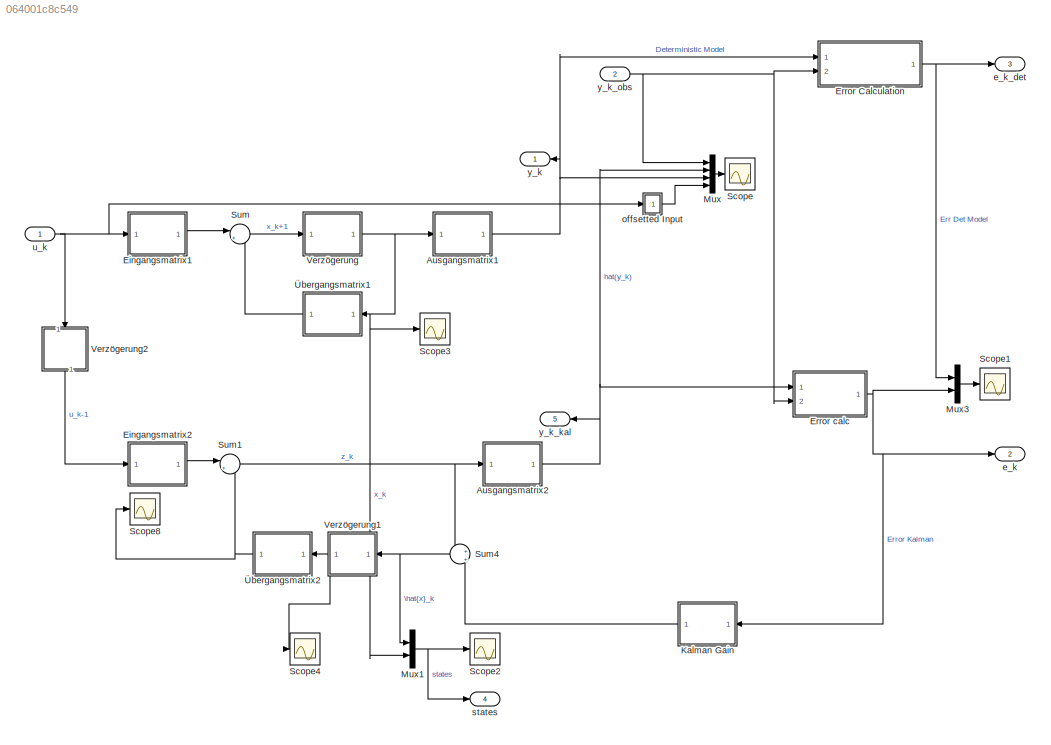
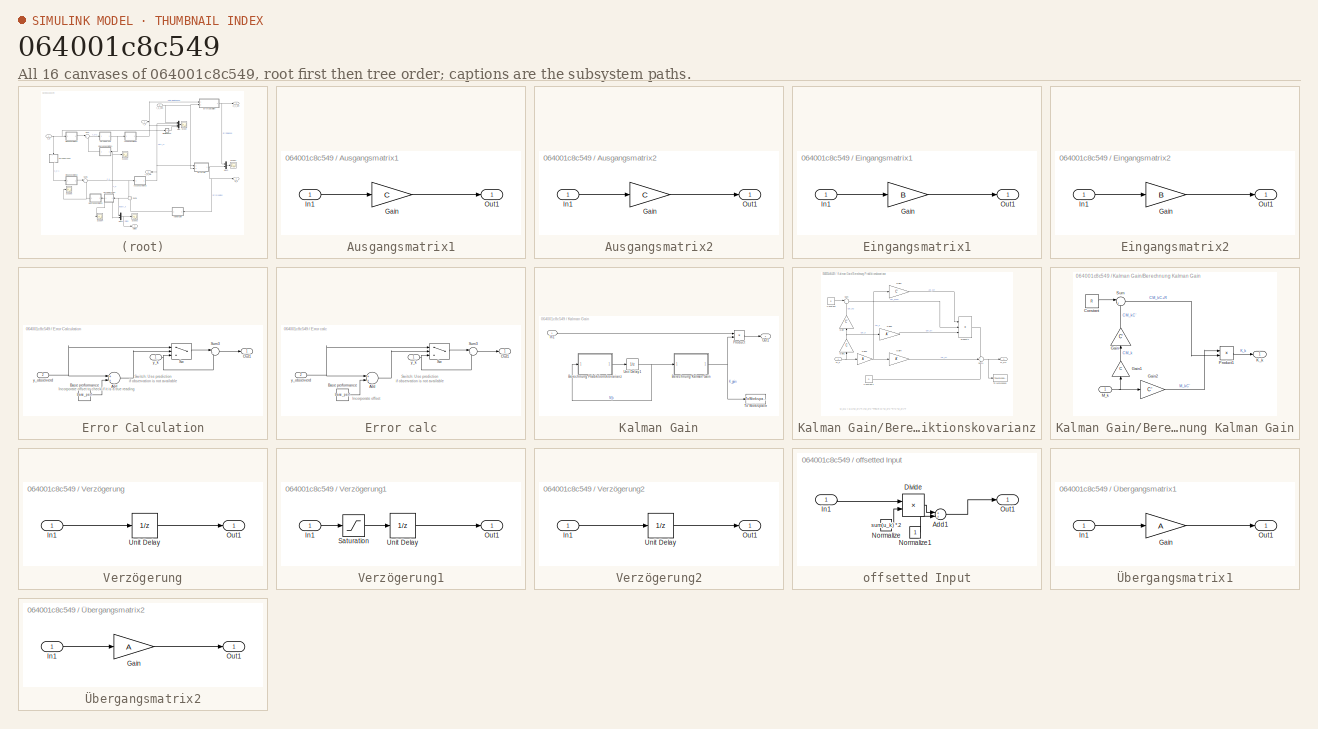
[diagram: thumbnail index - all 16 canvases of the model, root first then tree order]
MODEL slx_064001c8c549
KIND model
CONFIG AbsTol = auto
CONFIG FixedStep = T
CONFIG MaxStep = auto
CONFIG MinStep = auto
CONFIG RelTol = 1e-3
CONFIG SampleTimeConstraint = Unconstrained
CONFIG Solver = FixedStepDiscrete
CONFIG SolverMode = SingleTasking
CONFIG SolverName = FixedStepDiscrete
CONFIG StartTime = 1
CONFIG StopTime = T_end
WORKSPACE source: external: MATLAB File  (data not in archive)
BLOCK [SubSystem] Ausgangsmatrix1
  Ports = [1, 1]
  RequestExecContextInheritance = off
BLOCK [Gain] Ausgangsmatrix1/Gain
  Gain = C
  Multiplication = Matrix(K*u)
  OutDataTypeStr = Inherit: Inherit via internal rule
  ParamDataTypeStr = Inherit: Inherit via internal rule
  SaturateOnIntegerOverflow = off
BLOCK [Inport] Ausgangsmatrix1/In1
  IconDisplay = Port number
BLOCK [Outport] Ausgangsmatrix1/Out1
  IconDisplay = Port number
BLOCK [SubSystem] Ausgangsmatrix2
  Ports = [1, 1]
  RequestExecContextInheritance = off
BLOCK [Gain] Ausgangsmatrix2/Gain
  Gain = C
  Multiplication = Matrix(K*u)
  OutDataTypeStr = Inherit: Inherit via internal rule
  ParamDataTypeStr = Inherit: Inherit via internal rule
  SaturateOnIntegerOverflow = off
BLOCK [Inport] Ausgangsmatrix2/In1
  IconDisplay = Port number
BLOCK [Outport] Ausgangsmatrix2/Out1
  IconDisplay = Port number
BLOCK [SubSystem] Eingangsmatrix1
  Ports = [1, 1]
  RequestExecContextInheritance = off
BLOCK [Gain] Eingangsmatrix1/Gain
  Gain = B
  OutDataTypeStr = Inherit: Inherit via internal rule
  ParamDataTypeStr = Inherit: Inherit via internal rule
  SaturateOnIntegerOverflow = off
BLOCK [Inport] Eingangsmatrix1/In1
  IconDisplay = Port number
BLOCK [Outport] Eingangsmatrix1/Out1
  IconDisplay = Port number
BLOCK [SubSystem] Eingangsmatrix2
  Ports = [1, 1]
  RequestExecContextInheritance = off
BLOCK [Gain] Eingangsmatrix2/Gain
  Gain = B
  OutDataTypeStr = Inherit: Inherit via internal rule
  ParamDataTypeStr = Inherit: Inherit via internal rule
  SaturateOnIntegerOverflow = off
BLOCK [Inport] Eingangsmatrix2/In1
  IconDisplay = Port number
BLOCK [Outport] Eingangsmatrix2/Out1
  IconDisplay = Port number
BLOCK [SubSystem] Error Calculation
  Ports = [2, 1]
  RequestExecContextInheritance = off
BLOCK [Sum] Error Calculation/Add
  InputSameDT = off
  OutDataTypeStr = Inherit: Inherit via internal rule
  Ports = [2, 1]
  SaturateOnIntegerOverflow = off
BLOCK [Constant] Error Calculation/Base performance
  Value = base_perf
BLOCK [Outport] Error Calculation/Out1
  IconDisplay = Port number
BLOCK [Sum] Error Calculation/Sum3
  IconShape = round
  InputSameDT = off
  Inputs = |+-
  OutDataTypeStr = Inherit: Inherit via internal rule
  Ports = [2, 1]
  SaturateOnIntegerOverflow = off
BLOCK [Switch] Error Calculation/Sw
  Criteria = u2 > Threshold
  InputSameDT = off
  SaturateOnIntegerOverflow = off
BLOCK [Inport] Error Calculation/y_k
  IconDisplay = Port number
BLOCK [Inport] Error Calculation/y_observerd
  IconDisplay = Port number
  Port = 2
BLOCK [SubSystem] Error calc
  Ports = [2, 1]
  RequestExecContextInheritance = off
BLOCK [Sum] Error calc/Add
  InputSameDT = off
  OutDataTypeStr = Inherit: Inherit via internal rule
  Ports = [2, 1]
  SaturateOnIntegerOverflow = off
BLOCK [Constant] Error calc/Base performance
  Value = base_perf
BLOCK [Outport] Error calc/Out1
  IconDisplay = Port number
BLOCK [Sum] Error calc/Sum3
  IconShape = round
  InputSameDT = off
  Inputs = |+-
  OutDataTypeStr = Inherit: Inherit via internal rule
  Ports = [2, 1]
  SaturateOnIntegerOverflow = off
BLOCK [Switch] Error calc/Sw
  Criteria = u2 > Threshold
  InputSameDT = off
  SaturateOnIntegerOverflow = off
BLOCK [Inport] Error calc/y_k
  IconDisplay = Port number
BLOCK [Inport] Error calc/y_observerd
  IconDisplay = Port number
  Port = 2
BLOCK [SubSystem] Kalman Gain
  Ports = [1, 1]
  RequestExecContextInheritance = off
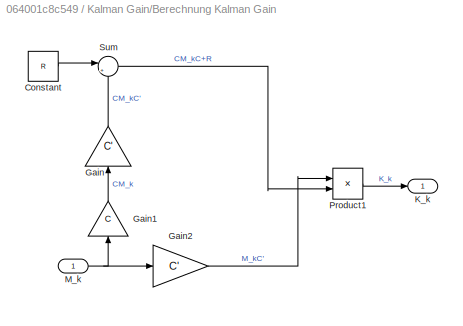
BLOCK [SubSystem] Kalman Gain/Berechnung Kalman Gain
  Ports = [1, 1]
  RequestExecContextInheritance = off
BLOCK [Constant] Kalman Gain/Berechnung Kalman Gain/Constant
  Value = R
BLOCK [Gain] Kalman Gain/Berechnung Kalman Gain/Gain
  Gain = C'
  Multiplication = Matrix(u*K)
  OutDataTypeStr = Inherit: Inherit via internal rule
  ParamDataTypeStr = Inherit: Inherit via internal rule
  SaturateOnIntegerOverflow = off
BLOCK [Gain] Kalman Gain/Berechnung Kalman Gain/Gain1
  Gain = C
  Multiplication = Matrix(K*u)
  OutDataTypeStr = Inherit: Inherit via internal rule
  ParamDataTypeStr = Inherit: Inherit via internal rule
  SaturateOnIntegerOverflow = off
BLOCK [Gain] Kalman Gain/Berechnung Kalman Gain/Gain2
  Gain = C'
  Multiplication = Matrix(u*K)
  OutDataTypeStr = Inherit: Inherit via internal rule
  ParamDataTypeStr = Inherit: Inherit via internal rule
  SaturateOnIntegerOverflow = off
BLOCK [Outport] Kalman Gain/Berechnung Kalman Gain/K_k
  IconDisplay = Port number
BLOCK [Inport] Kalman Gain/Berechnung Kalman Gain/M_k
  IconDisplay = Port number
BLOCK [Product] Kalman Gain/Berechnung Kalman Gain/Product1
  InputSameDT = off
  Inputs = */
  Multiplication = Matrix(*)
  OutDataTypeStr = Inherit: Inherit via internal rule
  Ports = [2, 1]
  SaturateOnIntegerOverflow = off
BLOCK [Sum] Kalman Gain/Berechnung Kalman Gain/Sum
  IconShape = round
  InputSameDT = off
  Inputs = |++
  OutDataTypeStr = Inherit: Inherit via internal rule
  Ports = [2, 1]
  SaturateOnIntegerOverflow = off
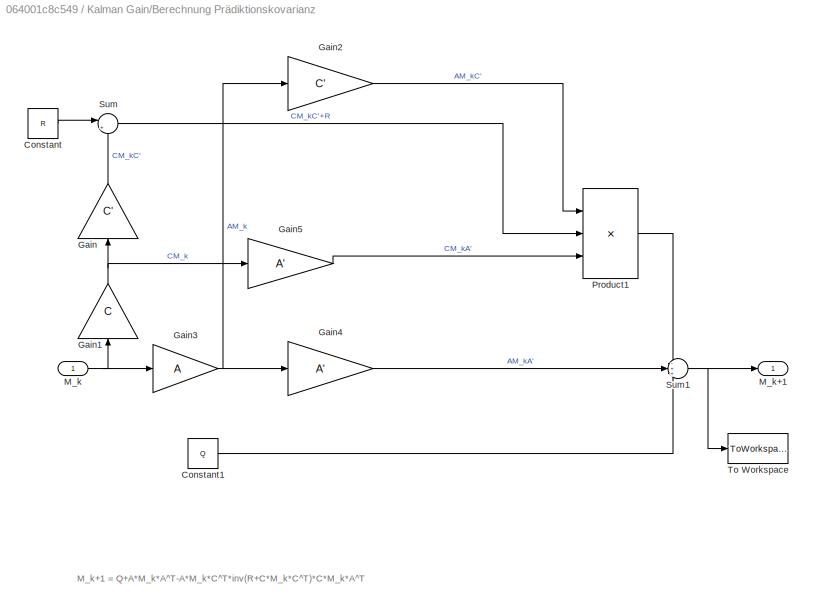
BLOCK [SubSystem] Kalman Gain/Berechnung Prädiktionskovarianz
  Ports = [1, 1]
  RequestExecContextInheritance = off
BLOCK [Constant] Kalman Gain/Berechnung Prädiktionskovarianz/Constant
  Value = R
BLOCK [Constant] Kalman Gain/Berechnung Prädiktionskovarianz/Constant1
  Value = Q
  VectorParams1D = off
BLOCK [Gain] Kalman Gain/Berechnung Prädiktionskovarianz/Gain
  Gain = C'
  Multiplication = Matrix(u*K)
  OutDataTypeStr = Inherit: Inherit via internal rule
  ParamDataTypeStr = Inherit: Inherit via internal rule
  SaturateOnIntegerOverflow = off
BLOCK [Gain] Kalman Gain/Berechnung Prädiktionskovarianz/Gain1
  Gain = C
  Multiplication = Matrix(K*u)
  OutDataTypeStr = Inherit: Inherit via internal rule
  ParamDataTypeStr = Inherit: Inherit via internal rule
  SaturateOnIntegerOverflow = off
BLOCK [Gain] Kalman Gain/Berechnung Prädiktionskovarianz/Gain2
  Gain = C'
  Multiplication = Matrix(u*K)
  OutDataTypeStr = Inherit: Inherit via internal rule
  ParamDataTypeStr = Inherit: Inherit via internal rule
  SaturateOnIntegerOverflow = off
BLOCK [Gain] Kalman Gain/Berechnung Prädiktionskovarianz/Gain3
  Gain = A
  Multiplication = Matrix(K*u)
  OutDataTypeStr = Inherit: Inherit via internal rule
  ParamDataTypeStr = Inherit: Inherit via internal rule
  SaturateOnIntegerOverflow = off
BLOCK [Gain] Kalman Gain/Berechnung Prädiktionskovarianz/Gain4
  Gain = A'
  Multiplication = Matrix(u*K)
  OutDataTypeStr = Inherit: Inherit via internal rule
  ParamDataTypeStr = Inherit: Inherit via internal rule
  SaturateOnIntegerOverflow = off
BLOCK [Gain] Kalman Gain/Berechnung Prädiktionskovarianz/Gain5
  Gain = A'
  Multiplication = Matrix(u*K)
  OutDataTypeStr = Inherit: Inherit via internal rule
  ParamDataTypeStr = Inherit: Inherit via internal rule
  SaturateOnIntegerOverflow = off
BLOCK [Inport] Kalman Gain/Berechnung Prädiktionskovarianz/M_k
  IconDisplay = Port number
BLOCK [Outport] Kalman Gain/Berechnung Prädiktionskovarianz/M_k+1
  IconDisplay = Port number
BLOCK [Product] Kalman Gain/Berechnung Prädiktionskovarianz/Product1
  InputSameDT = off
  Inputs = */*
  Multiplication = Matrix(*)
  OutDataTypeStr = Inherit: Inherit via internal rule
  Ports = [3, 1]
  SaturateOnIntegerOverflow = off
BLOCK [Sum] Kalman Gain/Berechnung Prädiktionskovarianz/Sum
  IconShape = round
  InputSameDT = off
  Inputs = |++
  OutDataTypeStr = Inherit: Inherit via internal rule
  Ports = [2, 1]
  SaturateOnIntegerOverflow = off
BLOCK [Sum] Kalman Gain/Berechnung Prädiktionskovarianz/Sum1
  IconShape = round
  InputSameDT = off
  Inputs = -++
  OutDataTypeStr = Inherit: Inherit via internal rule
  Ports = [3, 1]
  SaturateOnIntegerOverflow = off
BLOCK [ToWorkspace] Kalman Gain/Berechnung Prädiktionskovarianz/To Workspace
  MaxDataPoints = inf
  Ports = [1]
  SampleTime = -1
  SaveFormat = Structure
  VariableName = Mk1
BLOCK [Inport] Kalman Gain/In1
  IconDisplay = Port number
BLOCK [Outport] Kalman Gain/Out1
  IconDisplay = Port number
BLOCK [Product] Kalman Gain/Product
  InputSameDT = off
  OutDataTypeStr = Inherit: Inherit via internal rule
  Ports = [2, 1]
  SaturateOnIntegerOverflow = off
BLOCK [ToWorkspace] Kalman Gain/To Workspace
  MaxDataPoints = inf
  Ports = [1]
  SampleTime = -1
  SaveFormat = Structure
  VariableName = K_gain
BLOCK [UnitDelay] Kalman Gain/Unit Delay1
  InitialCondition = M_0
  SampleTime = -1
BLOCK [Mux] Mux
  DisplayOption = signals
  Ports = [4, 1]
BLOCK [Mux] Mux1
  DisplayOption = bar
  Inputs = 2
  Ports = [2, 1]
BLOCK [Mux] Mux3
  DisplayOption = signals
  Inputs = 2
  Ports = [2, 1]
BLOCK [Scope] Scope
  DataFormat = StructureWithTime
  Floating = off
  LegendLocations = 0.86772     0.84587     0.11013    0.099312
  NumInputPorts = 1
  Ports = [1]
  SampleTime = 0
  ShowLegends = on
  YMax = 1.25
  YMin = -1.25
BLOCK [Scope] Scope1
  DataFormat = StructureWithTime
  Floating = off
  LegendLocations = 0.87996     0.89208    0.096395    0.053097
  NumInputPorts = 1
  Ports = [1]
  SampleTime = 0
  SaveName = ScopeData1
  ShowLegends = on
BLOCK [Scope] Scope2
  DataFormat = StructureWithTime
  Floating = off
  LegendLocations = 0.75832      0.7996      0.1395     0.10065
  NumInputPorts = 1
  Ports = [1]
  SampleTime = 0
  SaveName = ScopeData2
  ShowLegends = on
BLOCK [Scope] Scope3
  DataFormat = StructureWithTime
  Floating = off
  NumInputPorts = 1
  Ports = [1]
  SampleTime = 0
  SaveName = ScopeData3
  ShowLegends = off
BLOCK [Scope] Scope4
  DataFormat = StructureWithTime
  Floating = off
  LegendLocations = 0.75832      0.7996      0.1953    0.053812
  NumInputPorts = 1
  Ports = [1]
  SampleTime = 0
  SaveName = ScopeData4
  ShowLegends = on
BLOCK [Scope] Scope8
  DataFormat = StructureWithTime
  Floating = off
  NumInputPorts = 1
  Ports = [1]
  SampleTime = 0
  SaveName = ScopeData8
  ShowLegends = on
BLOCK [Sum] Sum
  IconShape = round
  InputSameDT = off
  Inputs = |++
  OutDataTypeStr = Inherit: Inherit via internal rule
  Ports = [2, 1]
  SaturateOnIntegerOverflow = off
BLOCK [Sum] Sum1
  IconShape = round
  InputSameDT = off
  Inputs = |++
  OutDataTypeStr = Inherit: Inherit via internal rule
  Ports = [2, 1]
  SaturateOnIntegerOverflow = off
BLOCK [Sum] Sum4
  IconShape = round
  InputSameDT = off
  Inputs = +|+
  OutDataTypeStr = Inherit: Inherit via internal rule
  Ports = [2, 1]
  SaturateOnIntegerOverflow = off
BLOCK [SubSystem] Verzögerung
  Ports = [1, 1]
  RequestExecContextInheritance = off
BLOCK [Inport] Verzögerung/In1
  IconDisplay = Port number
BLOCK [Outport] Verzögerung/Out1
  IconDisplay = Port number
BLOCK [UnitDelay] Verzögerung/Unit Delay
  InitialCondition = x_0
  SampleTime = -1
BLOCK [SubSystem] Verzögerung1
  Ports = [1, 1]
  RequestExecContextInheritance = off
BLOCK [Inport] Verzögerung1/In1
  IconDisplay = Port number
BLOCK [Outport] Verzögerung1/Out1
  IconDisplay = Port number
BLOCK [Saturate] Verzögerung1/Saturation
  InputPortMap = u0
  LinearizeAsGain = off
  LowerLimit = 0
  OutMax = 20000
  OutMin = 0
  Ports = [1, 1]
  UpperLimit = 20000
BLOCK [UnitDelay] Verzögerung1/Unit Delay
  InitialCondition = x0hat
  SampleTime = -1
BLOCK [SubSystem] Verzögerung2
  Ports = [1, 1]
  RequestExecContextInheritance = off
BLOCK [Inport] Verzögerung2/In1
  IconDisplay = Port number
BLOCK [Outport] Verzögerung2/Out1
  IconDisplay = Port number
BLOCK [UnitDelay] Verzögerung2/Unit Delay
  SampleTime = -1
BLOCK [Outport] e_k
  IconDisplay = Port number
  Port = 2
BLOCK [Outport] e_k_det
  IconDisplay = Port number
  Port = 3
BLOCK [SubSystem] offsetted Input
  Ports = [1, 1]
  RequestExecContextInheritance = off
BLOCK [Sum] offsetted Input/Add1
  InputSameDT = off
  OutDataTypeStr = Inherit: Inherit via internal rule
  Ports = [2, 1]
  SaturateOnIntegerOverflow = off
BLOCK [Product] offsetted Input/Divide
  InputSameDT = off
  Inputs = */
  OutDataTypeStr = Inherit: Inherit via internal rule
  Ports = [2, 1]
  RndMeth = Floor
  SaturateOnIntegerOverflow = off
BLOCK [Inport] offsetted Input/In1
  IconDisplay = Port number
BLOCK [Constant] offsetted Input/Normalize
  Value = sum(u_k) *.2
BLOCK [Constant] offsetted Input/Normalize1
BLOCK [Outport] offsetted Input/Out1
  IconDisplay = Port number
BLOCK [Outport] states
  IconDisplay = Port number
  Port = 4
BLOCK [Inport] u_k
  IconDisplay = Port number
BLOCK [Outport] y_k
  IconDisplay = Port number
BLOCK [Outport] y_k_kal
  IconDisplay = Port number
  Port = 5
BLOCK [Inport] y_k_obs
  IconDisplay = Port number
  Port = 2
BLOCK [SubSystem] Übergangsmatrix1
  Ports = [1, 1]
  RequestExecContextInheritance = off
BLOCK [Gain] Übergangsmatrix1/Gain
  Gain = A
  Multiplication = Matrix(K*u)
  OutDataTypeStr = Inherit: Inherit via internal rule
  ParamDataTypeStr = Inherit: Inherit via internal rule
  SaturateOnIntegerOverflow = off
BLOCK [Inport] Übergangsmatrix1/In1
  IconDisplay = Port number
BLOCK [Outport] Übergangsmatrix1/Out1
  IconDisplay = Port number
BLOCK [SubSystem] Übergangsmatrix2
  Ports = [1, 1]
  RequestExecContextInheritance = off
BLOCK [Gain] Übergangsmatrix2/Gain
  Gain = A
  Multiplication = Matrix(K*u)
  OutDataTypeStr = Inherit: Inherit via internal rule
  ParamDataTypeStr = Inherit: Inherit via internal rule
  SaturateOnIntegerOverflow = off
BLOCK [Inport] Übergangsmatrix2/In1
  IconDisplay = Port number
BLOCK [Outport] Übergangsmatrix2/Out1
  IconDisplay = Port number
ANNOTATION (root): Systemmodell
ANNOTATION (root): Simulated Syst
ANNOTATION Error Calculation: Incorporate offset to check if it is a true reading
ANNOTATION Error Calculation: Switch: Use prediction if observation is not available
ANNOTATION Error calc: Incorporate offset
ANNOTATION Error calc: Switch: Use prediction if observation is not available
ANNOTATION Kalman Gain/Berechnung Prädiktionskovarianz: M_k+1 = Q+A*M_k*A^T-A*M_k*C^T*inv(R+C*M_k*C^T)*C*M_k*A^T
LINE Ausgangsmatrix1/Gain:1 -> Ausgangsmatrix1/Out1:1
LINE Ausgangsmatrix1/In1:1 -> Ausgangsmatrix1/Gain:1
NET Ausgangsmatrix1:1 -> Error Calculation:1, Mux:3, y_k:1
LINE Ausgangsmatrix2/Gain:1 -> Ausgangsmatrix2/Out1:1
LINE Ausgangsmatrix2/In1:1 -> Ausgangsmatrix2/Gain:1
NET Ausgangsmatrix2:1 -> Error calc:1, Mux:2, y_k_kal:1
LINE Eingangsmatrix1/Gain:1 -> Eingangsmatrix1/Out1:1
LINE Eingangsmatrix1/In1:1 -> Eingangsmatrix1/Gain:1
LINE Eingangsmatrix1:1 -> Sum:1
LINE Eingangsmatrix2/Gain:1 -> Eingangsmatrix2/Out1:1
LINE Eingangsmatrix2/In1:1 -> Eingangsmatrix2/Gain:1
LINE Eingangsmatrix2:1 -> Sum1:1
LINE Error Calculation/Add:1 -> Error Calculation/Sw:2
LINE Error Calculation/Base performance:1 -> Error Calculation/Add:2
LINE Error Calculation/Sum3:1 -> Error Calculation/Out1:1
LINE Error Calculation/Sw:1 -> Error Calculation/Sum3:1
NET Error Calculation/y_k:1 -> Error Calculation/Sum3:2, Error Calculation/Sw:3
NET Error Calculation/y_observerd:1 -> Error Calculation/Add:1, Error Calculation/Sw:1
NET Error Calculation:1 -> Mux3:1, e_k_det:1
LINE Error calc/Add:1 -> Error calc/Sw:2
LINE Error calc/Base performance:1 -> Error calc/Add:2
LINE Error calc/Sum3:1 -> Error calc/Out1:1
LINE Error calc/Sw:1 -> Error calc/Sum3:1
NET Error calc/y_k:1 -> Error calc/Sum3:2, Error calc/Sw:3
NET Error calc/y_observerd:1 -> Error calc/Add:1, Error calc/Sw:1
NET Error calc:1 -> Kalman Gain:1, Mux3:2, e_k:1
LINE Kalman Gain/Berechnung Kalman Gain/Constant:1 -> Kalman Gain/Berechnung Kalman Gain/Sum:1
LINE Kalman Gain/Berechnung Kalman Gain/Gain1:1 -> Kalman Gain/Berechnung Kalman Gain/Gain:1
LINE Kalman Gain/Berechnung Kalman Gain/Gain2:1 -> Kalman Gain/Berechnung Kalman Gain/Product1:1
LINE Kalman Gain/Berechnung Kalman Gain/Gain:1 -> Kalman Gain/Berechnung Kalman Gain/Sum:2
NET Kalman Gain/Berechnung Kalman Gain/M_k:1 -> Kalman Gain/Berechnung Kalman Gain/Gain1:1, Kalman Gain/Berechnung Kalman Gain/Gain2:1
LINE Kalman Gain/Berechnung Kalman Gain/Product1:1 -> Kalman Gain/Berechnung Kalman Gain/K_k:1
LINE Kalman Gain/Berechnung Kalman Gain/Sum:1 -> Kalman Gain/Berechnung Kalman Gain/Product1:2
NET Kalman Gain/Berechnung Kalman Gain:1 -> Kalman Gain/Product:2, Kalman Gain/To Workspace:1
LINE Kalman Gain/Berechnung Prädiktionskovarianz/Constant1:1 -> Kalman Gain/Berechnung Prädiktionskovarianz/Sum1:3
LINE Kalman Gain/Berechnung Prädiktionskovarianz/Constant:1 -> Kalman Gain/Berechnung Prädiktionskovarianz/Sum:1
NET Kalman Gain/Berechnung Prädiktionskovarianz/Gain1:1 -> Kalman Gain/Berechnung Prädiktionskovarianz/Gain5:1, Kalman Gain/Berechnung Prädiktionskovarianz/Gain:1
LINE Kalman Gain/Berechnung Prädiktionskovarianz/Gain2:1 -> Kalman Gain/Berechnung Prädiktionskovarianz/Product1:1
NET Kalman Gain/Berechnung Prädiktionskovarianz/Gain3:1 -> Kalman Gain/Berechnung Prädiktionskovarianz/Gain2:1, Kalman Gain/Berechnung Prädiktionskovarianz/Gain4:1
LINE Kalman Gain/Berechnung Prädiktionskovarianz/Gain4:1 -> Kalman Gain/Berechnung Prädiktionskovarianz/Sum1:2
LINE Kalman Gain/Berechnung Prädiktionskovarianz/Gain5:1 -> Kalman Gain/Berechnung Prädiktionskovarianz/Product1:3
LINE Kalman Gain/Berechnung Prädiktionskovarianz/Gain:1 -> Kalman Gain/Berechnung Prädiktionskovarianz/Sum:2
NET Kalman Gain/Berechnung Prädiktionskovarianz/M_k:1 -> Kalman Gain/Berechnung Prädiktionskovarianz/Gain1:1, Kalman Gain/Berechnung Prädiktionskovarianz/Gain3:1
LINE Kalman Gain/Berechnung Prädiktionskovarianz/Product1:1 -> Kalman Gain/Berechnung Prädiktionskovarianz/Sum1:1
NET Kalman Gain/Berechnung Prädiktionskovarianz/Sum1:1 -> Kalman Gain/Berechnung Prädiktionskovarianz/M_k+1:1, Kalman Gain/Berechnung Prädiktionskovarianz/To Workspace:1
LINE Kalman Gain/Berechnung Prädiktionskovarianz/Sum:1 -> Kalman Gain/Berechnung Prädiktionskovarianz/Product1:2
LINE Kalman Gain/Berechnung Prädiktionskovarianz:1 -> Kalman Gain/Unit Delay1:1
LINE Kalman Gain/In1:1 -> Kalman Gain/Product:1
LINE Kalman Gain/Product:1 -> Kalman Gain/Out1:1
NET Kalman Gain/Unit Delay1:1 -> Kalman Gain/Berechnung Kalman Gain:1, Kalman Gain/Berechnung Prädiktionskovarianz:1
LINE Kalman Gain:1 -> Sum4:2
NET Mux1:1 -> Scope2:1, states:1
LINE Mux3:1 -> Scope1:1
LINE Mux:1 -> Scope:1
NET Sum1:1 -> Ausgangsmatrix2:1, Sum4:1
NET Sum4:1 -> Mux1:1, Verzögerung1:1
LINE Sum:1 -> Verzögerung:1
LINE Verzögerung/In1:1 -> Verzögerung/Unit Delay:1
LINE Verzögerung/Unit Delay:1 -> Verzögerung/Out1:1
LINE Verzögerung1/In1:1 -> Verzögerung1/Saturation:1
LINE Verzögerung1/Saturation:1 -> Verzögerung1/Unit Delay:1
LINE Verzögerung1/Unit Delay:1 -> Verzögerung1/Out1:1
NET Verzögerung1:1 -> Scope4:1, Übergangsmatrix2:1
LINE Verzögerung2/In1:1 -> Verzögerung2/Unit Delay:1
LINE Verzögerung2/Unit Delay:1 -> Verzögerung2/Out1:1
LINE Verzögerung2:1 -> Eingangsmatrix2:1
NET Verzögerung:1 -> Ausgangsmatrix1:1, Mux1:2, Scope3:1, Übergangsmatrix1:1
LINE offsetted Input/Add1:1 -> offsetted Input/Out1:1
LINE offsetted Input/Divide:1 -> offsetted Input/Add1:1
LINE offsetted Input/In1:1 -> offsetted Input/Divide:1
LINE offsetted Input/Normalize1:1 -> offsetted Input/Add1:2
LINE offsetted Input/Normalize:1 -> offsetted Input/Divide:2
LINE offsetted Input:1 -> Mux:4
NET u_k:1 -> Eingangsmatrix1:1, Verzögerung2:1, offsetted Input:1
NET y_k_obs:1 -> Error Calculation:2, Error calc:2, Mux:1
LINE Übergangsmatrix1/Gain:1 -> Übergangsmatrix1/Out1:1
LINE Übergangsmatrix1/In1:1 -> Übergangsmatrix1/Gain:1
LINE Übergangsmatrix1:1 -> Sum:2
LINE Übergangsmatrix2/Gain:1 -> Übergangsmatrix2/Out1:1
LINE Übergangsmatrix2/In1:1 -> Übergangsmatrix2/Gain:1
NET Übergangsmatrix2:1 -> Scope8:1, Sum1:2
note: NET lines group one-source signal fan-out (src -> all destinations, sorted); 1:1 wires keep LINE
